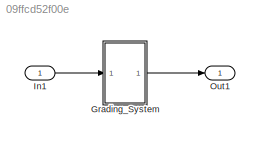
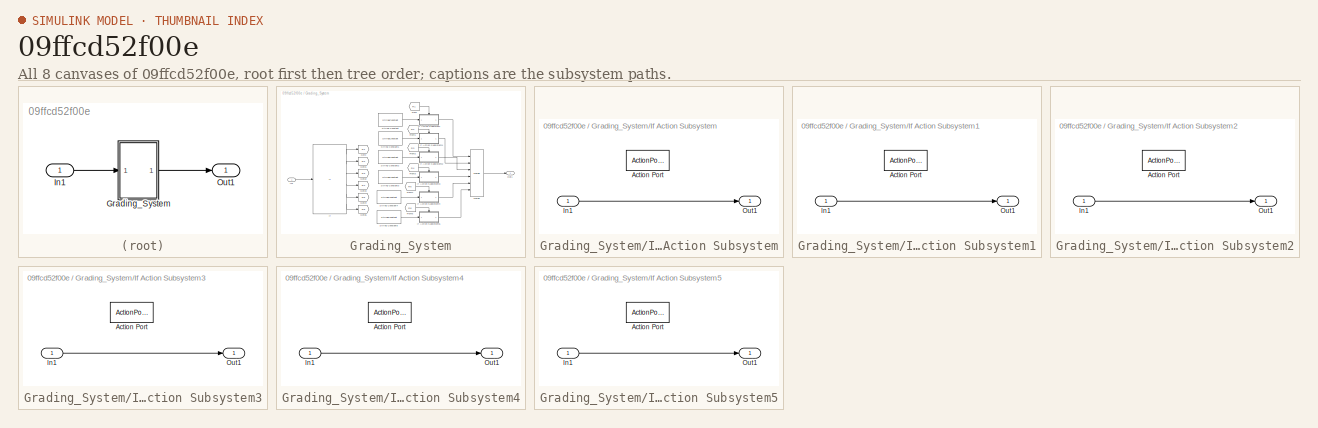
[diagram: thumbnail index - all 8 canvases of the model, root first then tree order]
MODEL slx_09ffcd52f00e
KIND model
CONFIG AbsTol = auto
CONFIG EnableMultiTasking = off
CONFIG FixedStep = auto
CONFIG MaxStep = auto
CONFIG MinStep = auto
CONFIG RelTol = 1e-3
CONFIG SampleTimeConstraint = Unconstrained
CONFIG SolverName = FixedStepDiscrete
CONFIG StartTime = 0.0
CONFIG StopTime = 10.0
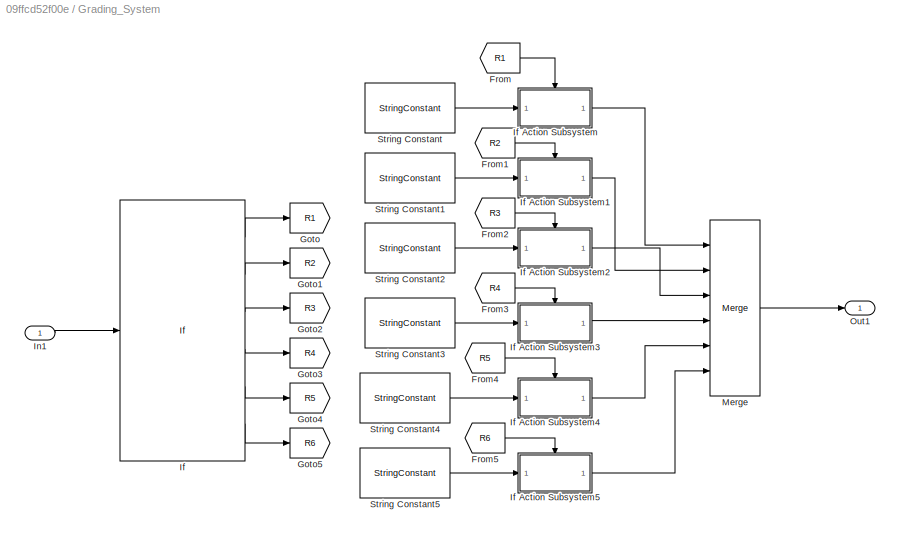
BLOCK [SubSystem] Grading_System
  Ports = [1, 1]
  RequestExecContextInheritance = off
  TreatAsAtomicUnit = on
BLOCK [From] Grading_System/From
  GotoTag = R1
BLOCK [From] Grading_System/From1
  GotoTag = R2
BLOCK [From] Grading_System/From2
  GotoTag = R3
BLOCK [From] Grading_System/From3
  GotoTag = R4
BLOCK [From] Grading_System/From4
  GotoTag = R5
BLOCK [From] Grading_System/From5
  GotoTag = R6
BLOCK [Goto] Grading_System/Goto
  GotoTag = R1
BLOCK [Goto] Grading_System/Goto1
  GotoTag = R2
BLOCK [Goto] Grading_System/Goto2
  GotoTag = R3
BLOCK [Goto] Grading_System/Goto3
  GotoTag = R4
BLOCK [Goto] Grading_System/Goto4
  GotoTag = R5
BLOCK [Goto] Grading_System/Goto5
  GotoTag = R6
BLOCK [If] Grading_System/If
  ElseIfExpressions = u1 >= 75  & u1 < 85, u1 >= 65  & u1 < 75, u1 >= 50  & u1 < 65, u1 >= 0  & u1 < 50
  IfExpression = u1 >= 85 & u1 <= 100
  Ports = [1, 6]
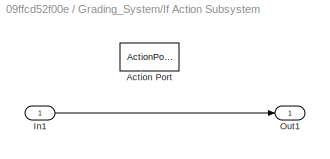
BLOCK [SubSystem] Grading_System/If Action Subsystem
  Ports = [1, 1, 0, 0, 0, 0, 0, 1]
  RequestExecContextInheritance = off
  TreatAsAtomicUnit = on
BLOCK [ActionPort] Grading_System/If Action Subsystem/Action Port
  ActionPortLabel = if(u1 >= 85 & u1 <= 100)
BLOCK [Inport] Grading_System/If Action Subsystem/In1
BLOCK [Outport] Grading_System/If Action Subsystem/Out1
BLOCK [SubSystem] Grading_System/If Action Subsystem1
  Ports = [1, 1, 0, 0, 0, 0, 0, 1]
  RequestExecContextInheritance = off
  TreatAsAtomicUnit = on
BLOCK [ActionPort] Grading_System/If Action Subsystem1/Action Port
  ActionPortLabel = elseif(u1 >= 75  & u1 < 85)
BLOCK [Inport] Grading_System/If Action Subsystem1/In1
BLOCK [Outport] Grading_System/If Action Subsystem1/Out1
BLOCK [SubSystem] Grading_System/If Action Subsystem2
  Ports = [1, 1, 0, 0, 0, 0, 0, 1]
  RequestExecContextInheritance = off
  TreatAsAtomicUnit = on
BLOCK [ActionPort] Grading_System/If Action Subsystem2/Action Port
  ActionPortLabel = elseif( u1 >= 65  & u1 < 75)
BLOCK [Inport] Grading_System/If Action Subsystem2/In1
BLOCK [Outport] Grading_System/If Action Subsystem2/Out1
BLOCK [SubSystem] Grading_System/If Action Subsystem3
  Ports = [1, 1, 0, 0, 0, 0, 0, 1]
  RequestExecContextInheritance = off
  TreatAsAtomicUnit = on
BLOCK [ActionPort] Grading_System/If Action Subsystem3/Action Port
  ActionPortLabel = elseif( u1 >= 50  & u1 < 65)
BLOCK [Inport] Grading_System/If Action Subsystem3/In1
BLOCK [Outport] Grading_System/If Action Subsystem3/Out1
BLOCK [SubSystem] Grading_System/If Action Subsystem4
  Ports = [1, 1, 0, 0, 0, 0, 0, 1]
  RequestExecContextInheritance = off
  TreatAsAtomicUnit = on
BLOCK [ActionPort] Grading_System/If Action Subsystem4/Action Port
  ActionPortLabel = elseif( u1 >= 0  & u1 < 50)
BLOCK [Inport] Grading_System/If Action Subsystem4/In1
BLOCK [Outport] Grading_System/If Action Subsystem4/Out1
BLOCK [SubSystem] Grading_System/If Action Subsystem5
  Ports = [1, 1, 0, 0, 0, 0, 0, 1]
  RequestExecContextInheritance = off
  TreatAsAtomicUnit = on
BLOCK [ActionPort] Grading_System/If Action Subsystem5/Action Port
  ActionPortLabel = else
BLOCK [Inport] Grading_System/If Action Subsystem5/In1
BLOCK [Outport] Grading_System/If Action Subsystem5/Out1
BLOCK [Inport] Grading_System/In1
BLOCK [Merge] Grading_System/Merge
  Inputs = 6
  Ports = [6, 1]
BLOCK [Outport] Grading_System/Out1
BLOCK [StringConstant] Grading_System/String Constant
  String = "Excellent!"
BLOCK [StringConstant] Grading_System/String Constant1
  String = "Very Good!"
BLOCK [StringConstant] Grading_System/String Constant2
  String = "Good!"
BLOCK [StringConstant] Grading_System/String Constant3
  String = "Pass!"
BLOCK [StringConstant] Grading_System/String Constant4
  String = "Failed!"
BLOCK [StringConstant] Grading_System/String Constant5
  String = "Invalid Input!"
BLOCK [Inport] In1
BLOCK [Outport] Out1
LINE Grading_System/From1:1 -> Grading_System/If Action Subsystem1:ifaction
LINE Grading_System/From2:1 -> Grading_System/If Action Subsystem2:ifaction
LINE Grading_System/From3:1 -> Grading_System/If Action Subsystem3:ifaction
LINE Grading_System/From4:1 -> Grading_System/If Action Subsystem4:ifaction
LINE Grading_System/From5:1 -> Grading_System/If Action Subsystem5:ifaction
LINE Grading_System/From:1 -> Grading_System/If Action Subsystem:ifaction
LINE Grading_System/If Action Subsystem/In1:1 -> Grading_System/If Action Subsystem/Out1:1
LINE Grading_System/If Action Subsystem1/In1:1 -> Grading_System/If Action Subsystem1/Out1:1
LINE Grading_System/If Action Subsystem1:1 -> Grading_System/Merge:2
LINE Grading_System/If Action Subsystem2/In1:1 -> Grading_System/If Action Subsystem2/Out1:1
LINE Grading_System/If Action Subsystem2:1 -> Grading_System/Merge:3
LINE Grading_System/If Action Subsystem3/In1:1 -> Grading_System/If Action Subsystem3/Out1:1
LINE Grading_System/If Action Subsystem3:1 -> Grading_System/Merge:4
LINE Grading_System/If Action Subsystem4/In1:1 -> Grading_System/If Action Subsystem4/Out1:1
LINE Grading_System/If Action Subsystem4:1 -> Grading_System/Merge:5
LINE Grading_System/If Action Subsystem5/In1:1 -> Grading_System/If Action Subsystem5/Out1:1
LINE Grading_System/If Action Subsystem5:1 -> Grading_System/Merge:6
LINE Grading_System/If Action Subsystem:1 -> Grading_System/Merge:1
LINE Grading_System/If:1 -> Grading_System/Goto:1
LINE Grading_System/If:2 -> Grading_System/Goto1:1
LINE Grading_System/If:3 -> Grading_System/Goto2:1
LINE Grading_System/If:4 -> Grading_System/Goto3:1
LINE Grading_System/If:5 -> Grading_System/Goto4:1
LINE Grading_System/If:6 -> Grading_System/Goto5:1
LINE Grading_System/In1:1 -> Grading_System/If:1
LINE Grading_System/Merge:1 -> Grading_System/Out1:1
LINE Grading_System/String Constant1:1 -> Grading_System/If Action Subsystem1:1
LINE Grading_System/String Constant2:1 -> Grading_System/If Action Subsystem2:1
LINE Grading_System/String Constant3:1 -> Grading_System/If Action Subsystem3:1
LINE Grading_System/String Constant4:1 -> Grading_System/If Action Subsystem4:1
LINE Grading_System/String Constant5:1 -> Grading_System/If Action Subsystem5:1
LINE Grading_System/String Constant:1 -> Grading_System/If Action Subsystem:1
LINE Grading_System:1 -> Out1:1
LINE In1:1 -> Grading_System:1
